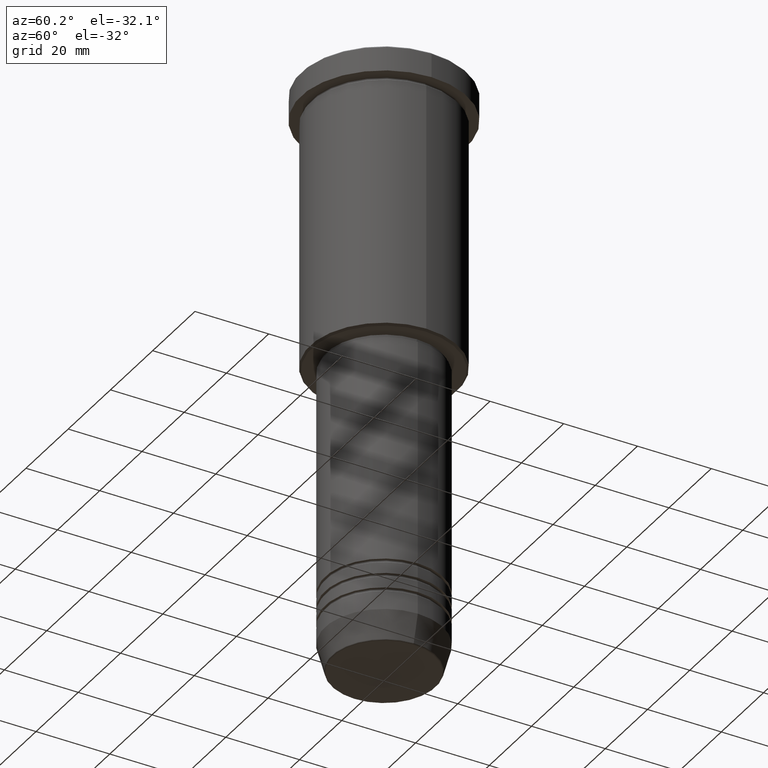
[diagram: clean part render]
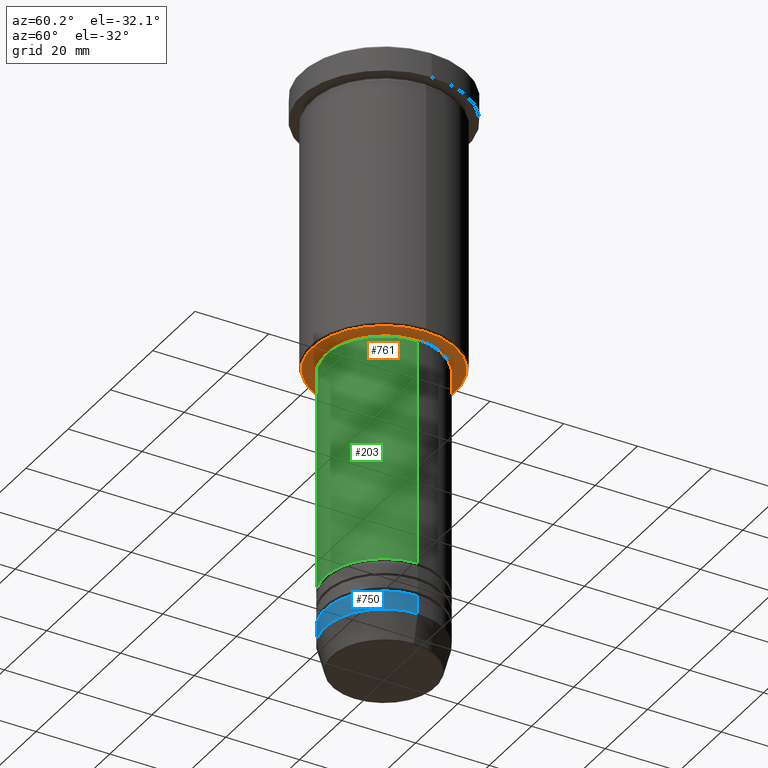
[diagram: same view with three faces highlighted in distinct colors, each labeled with its STEP entity id]
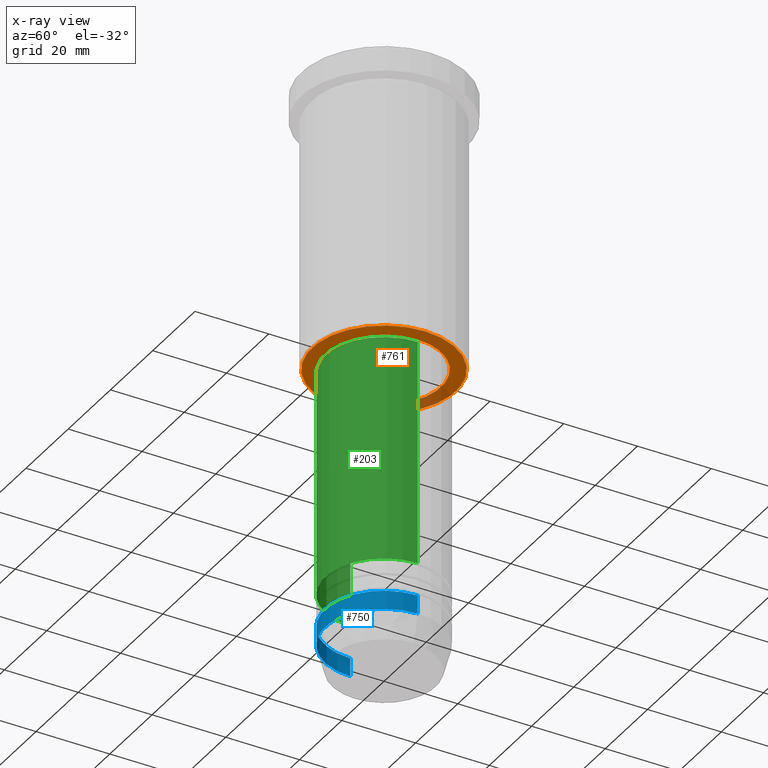
[diagram: x-ray of the same camera — body ghosted, the three highlighted faces saturated]
A machine part, auxiliary view with three faces highlighted in distinct colors.
The next image is the same camera in x-ray (body ghosted, the three faces saturated) — at least one of them is partly hidden behind the body in this view.
Their STEP definitions:

[orange] entity #761 — the highlighted planar face has unit normal (0, 0, -1).
#3 = DIRECTION ( 'NONE',  ( -1.000000000000000000, 0.000000000000000000, 0.000000000000000000 ) ) ;
#72 = CARTESIAN_POINT ( 'NONE',  ( 0.000000000000000000, 0.000000000000000000, -76.00000000000001421 ) ) ;
#80 = ORIENTED_EDGE ( 'NONE', *, *, #594, .T. ) ;
#101 = CARTESIAN_POINT ( 'NONE',  ( 0.000000000000000000, 0.000000000000000000, -76.00000000000001421 ) ) ;
#136 = EDGE_LOOP ( 'NONE', ( #887, #160 ) ) ;
#160 = ORIENTED_EDGE ( 'NONE', *, *, #498, .T. ) ;
#163 = CARTESIAN_POINT ( 'NONE',  ( 15.50000000000000000, 0.000000000000000000, -76.00000000000001421 ) ) ;
#189 = DIRECTION ( 'NONE',  ( 0.000000000000000000, 0.000000000000000000, -1.000000000000000000 ) ) ;
#204 = CARTESIAN_POINT ( 'NONE',  ( 0.000000000000000000, 20.00000000000000355, -76.00000000000001421 ) ) ;
#278 = DIRECTION ( 'NONE',  ( -0.000000000000000000, -0.000000000000000000, 1.000000000000000000 ) ) ;
#293 = PLANE ( 'NONE',  #692 ) ;
#315 = AXIS2_PLACEMENT_3D ( 'NONE', #72, #278, #907 ) ;
#338 = CIRCLE ( 'NONE', #574, 19.49999999999994671 ) ;
#348 = DIRECTION ( 'NONE',  ( 0.000000000000000000, 0.000000000000000000, -1.000000000000000000 ) ) ;
#352 = CARTESIAN_POINT ( 'NONE',  ( -19.49999999999994671, 2.418677428316019570E-15, -76.00000000000001421 ) ) ;
#416 = AXIS2_PLACEMENT_3D ( 'NONE', #101, #744, #467 ) ;
#428 = DIRECTION ( 'NONE',  ( -1.000000000000000000, 0.000000000000000000, -0.000000000000000000 ) ) ;
#451 = EDGE_LOOP ( 'NONE', ( #80, #977 ) ) ;
#459 = CARTESIAN_POINT ( 'NONE',  ( -15.50000000000000000, 1.898202538678397557E-15, -76.00000000000001421 ) ) ;
#467 = DIRECTION ( 'NONE',  ( 1.000000000000000000, 0.000000000000000000, 0.000000000000000000 ) ) ;
#469 = VERTEX_POINT ( 'NONE', #163 ) ;
#498 = EDGE_CURVE ( 'NONE', #800, #597, #859, .T. ) ;
#574 = AXIS2_PLACEMENT_3D ( 'NONE', #747, #189, #3 ) ;
#577 = DIRECTION ( 'NONE',  ( 0.000000000000000000, 0.000000000000000000, -1.000000000000000000 ) ) ;
#594 = EDGE_CURVE ( 'NONE', #469, #659, #1093, .T. ) ;
#597 = VERTEX_POINT ( 'NONE', #1002 ) ;
#659 = VERTEX_POINT ( 'NONE', #459 ) ;
#692 = AXIS2_PLACEMENT_3D ( 'NONE', #204, #577, #428 ) ;
#726 = DIRECTION ( 'NONE',  ( -1.000000000000000000, 0.000000000000000000, 0.000000000000000000 ) ) ;
#744 = DIRECTION ( 'NONE',  ( -0.000000000000000000, -0.000000000000000000, 1.000000000000000000 ) ) ;
#747 = CARTESIAN_POINT ( 'NONE',  ( 0.000000000000000000, 0.000000000000000000, -76.00000000000001421 ) ) ;
#756 = FACE_OUTER_BOUND ( 'NONE', #136, .T. ) ;
#761 = ADVANCED_FACE ( 'NONE', ( #756, #1109 ), #293, .T. ) ;
#800 = VERTEX_POINT ( 'NONE', #352 ) ;
#859 = CIRCLE ( 'NONE', #972, 19.49999999999994671 ) ;
#875 = EDGE_CURVE ( 'NONE', #659, #469, #1080, .T. ) ;
#887 = ORIENTED_EDGE ( 'NONE', *, *, #923, .T. ) ;
#907 = DIRECTION ( 'NONE',  ( 1.000000000000000000, 0.000000000000000000, 0.000000000000000000 ) ) ;
#923 = EDGE_CURVE ( 'NONE', #597, #800, #338, .T. ) ;
#963 = CARTESIAN_POINT ( 'NONE',  ( 0.000000000000000000, 0.000000000000000000, -76.00000000000001421 ) ) ;
#972 = AXIS2_PLACEMENT_3D ( 'NONE', #963, #348, #726 ) ;
#977 = ORIENTED_EDGE ( 'NONE', *, *, #875, .T. ) ;
#1002 = CARTESIAN_POINT ( 'NONE',  ( 19.49999999999994671, 0.000000000000000000, -76.00000000000001421 ) ) ;
#1080 = CIRCLE ( 'NONE', #315, 15.50000000000000000 ) ;
#1093 = CIRCLE ( 'NONE', #416, 15.50000000000000000 ) ;
#1109 = FACE_BOUND ( 'NONE', #451, .T. ) ;

[blue] entity #750 — the highlighted cylindrical surface (partial cylindrical patch) has radius 16 mm, axis along (-0, -0, 1).
#8 = VERTEX_POINT ( 'NONE', #710 ) ;
#9 = CIRCLE ( 'NONE', #1028, 16.00000000000000000 ) ;
#13 = CARTESIAN_POINT ( 'NONE',  ( -16.00000000000000000, 1.959434878635765131E-15, -152.5000000000000000 ) ) ;
#27 = ORIENTED_EDGE ( 'NONE', *, *, #1070, .F. ) ;
#64 = ORIENTED_EDGE ( 'NONE', *, *, #834, .F. ) ;
#91 = AXIS2_PLACEMENT_3D ( 'NONE', #318, #506, #870 ) ;
#106 = CYLINDRICAL_SURFACE ( 'NONE', #973, 16.00000000000000000 ) ;
#147 = LINE ( 'NONE', #1147, #519 ) ;
#202 = VERTEX_POINT ( 'NONE', #13 ) ;
#224 = FACE_OUTER_BOUND ( 'NONE', #967, .T. ) ;
#318 = CARTESIAN_POINT ( 'NONE',  ( 0.000000000000000000, 0.000000000000000000, -147.5000000000000000 ) ) ;
#323 = VECTOR ( 'NONE', #705, 1000.000000000000000 ) ;
#328 = DIRECTION ( 'NONE',  ( -0.000000000000000000, -0.000000000000000000, 1.000000000000000000 ) ) ;
#386 = DIRECTION ( 'NONE',  ( -0.000000000000000000, -0.000000000000000000, 1.000000000000000000 ) ) ;
#426 = VERTEX_POINT ( 'NONE', #1131 ) ;
#476 = CARTESIAN_POINT ( 'NONE',  ( 0.000000000000000000, 0.000000000000000000, 0.000000000000000000 ) ) ;
#506 = DIRECTION ( 'NONE',  ( -0.000000000000000000, -0.000000000000000000, 1.000000000000000000 ) ) ;
#519 = VECTOR ( 'NONE', #1067, 1000.000000000000000 ) ;
#524 = CARTESIAN_POINT ( 'NONE',  ( 16.00000000000000000, 0.000000000000000000, 0.000000000000000000 ) ) ;
#539 = EDGE_CURVE ( 'NONE', #202, #860, #9, .T. ) ;
#621 = ORIENTED_EDGE ( 'NONE', *, *, #799, .T. ) ;
#705 = DIRECTION ( 'NONE',  ( -0.000000000000000000, -0.000000000000000000, 1.000000000000000000 ) ) ;
#707 = CARTESIAN_POINT ( 'NONE',  ( 0.000000000000000000, 0.000000000000000000, -152.5000000000000000 ) ) ;
#710 = CARTESIAN_POINT ( 'NONE',  ( -16.00000000000000000, 1.959434878635765131E-15, -147.5000000000000000 ) ) ;
#750 = ADVANCED_FACE ( 'NONE', ( #224 ), #106, .T. ) ;
#799 = EDGE_CURVE ( 'NONE', #860, #426, #1152, .T. ) ;
#834 = EDGE_CURVE ( 'NONE', #202, #8, #147, .T. ) ;
#860 = VERTEX_POINT ( 'NONE', #998 ) ;
#870 = DIRECTION ( 'NONE',  ( 1.000000000000000000, 0.000000000000000000, 0.000000000000000000 ) ) ;
#880 = DIRECTION ( 'NONE',  ( 1.000000000000000000, 0.000000000000000000, 0.000000000000000000 ) ) ;
#882 = CIRCLE ( 'NONE', #91, 16.00000000000000000 ) ;
#946 = ORIENTED_EDGE ( 'NONE', *, *, #539, .T. ) ;
#967 = EDGE_LOOP ( 'NONE', ( #64, #946, #621, #27 ) ) ;
#973 = AXIS2_PLACEMENT_3D ( 'NONE', #476, #386, #1100 ) ;
#998 = CARTESIAN_POINT ( 'NONE',  ( 16.00000000000000000, 0.000000000000000000, -152.5000000000000000 ) ) ;
#1028 = AXIS2_PLACEMENT_3D ( 'NONE', #707, #328, #880 ) ;
#1067 = DIRECTION ( 'NONE',  ( -0.000000000000000000, -0.000000000000000000, 1.000000000000000000 ) ) ;
#1070 = EDGE_CURVE ( 'NONE', #8, #426, #882, .T. ) ;
#1100 = DIRECTION ( 'NONE',  ( 1.000000000000000000, 0.000000000000000000, 0.000000000000000000 ) ) ;
#1131 = CARTESIAN_POINT ( 'NONE',  ( 16.00000000000000000, 0.000000000000000000, -147.5000000000000000 ) ) ;
#1147 = CARTESIAN_POINT ( 'NONE',  ( -16.00000000000000000, 1.959434878635765131E-15, 0.000000000000000000 ) ) ;
#1152 = LINE ( 'NONE', #524, #323 ) ;

[green] entity #203 — the highlighted cylindrical surface (partial cylindrical patch) has radius 16 mm, axis along (-0, -0, 1).
#15 = VERTEX_POINT ( 'NONE', #427 ) ;
#105 = EDGE_CURVE ( 'NONE', #438, #253, #273, .T. ) ;
#127 = DIRECTION ( 'NONE',  ( 1.000000000000000000, 0.000000000000000000, 0.000000000000000000 ) ) ;
#186 = ORIENTED_EDGE ( 'NONE', *, *, #703, .T. ) ;
#203 = ADVANCED_FACE ( 'NONE', ( #385 ), #754, .T. ) ;
#207 = DIRECTION ( 'NONE',  ( -0.000000000000000000, -0.000000000000000000, 1.000000000000000000 ) ) ;
#217 = AXIS2_PLACEMENT_3D ( 'NONE', #680, #851, #693 ) ;
#220 = CIRCLE ( 'NONE', #766, 16.00000000000000000 ) ;
#245 = VECTOR ( 'NONE', #1012, 1000.000000000000000 ) ;
#253 = VERTEX_POINT ( 'NONE', #959 ) ;
#273 = LINE ( 'NONE', #826, #713 ) ;
#329 = CARTESIAN_POINT ( 'NONE',  ( 0.000000000000000000, 0.000000000000000000, -77.00000000000004263 ) ) ;
#333 = EDGE_CURVE ( 'NONE', #253, #728, #779, .T. ) ;
#353 = CARTESIAN_POINT ( 'NONE',  ( 16.00000000000000000, 0.000000000000000000, 0.000000000000000000 ) ) ;
#385 = FACE_OUTER_BOUND ( 'NONE', #513, .T. ) ;
#427 = CARTESIAN_POINT ( 'NONE',  ( 16.00000000000000000, 0.000000000000000000, -138.4999999999999716 ) ) ;
#438 = VERTEX_POINT ( 'NONE', #957 ) ;
#513 = EDGE_LOOP ( 'NONE', ( #558, #186, #751, #570 ) ) ;
#558 = ORIENTED_EDGE ( 'NONE', *, *, #105, .F. ) ;
#560 = EDGE_CURVE ( 'NONE', #15, #728, #1087, .T. ) ;
#570 = ORIENTED_EDGE ( 'NONE', *, *, #333, .F. ) ;
#675 = DIRECTION ( 'NONE',  ( -0.000000000000000000, -0.000000000000000000, 1.000000000000000000 ) ) ;
#680 = CARTESIAN_POINT ( 'NONE',  ( 0.000000000000000000, 0.000000000000000000, 0.000000000000000000 ) ) ;
#689 = CARTESIAN_POINT ( 'NONE',  ( 16.00000000000000000, 0.000000000000000000, -77.00000000000004263 ) ) ;
#693 = DIRECTION ( 'NONE',  ( 1.000000000000000000, 0.000000000000000000, 0.000000000000000000 ) ) ;
#703 = EDGE_CURVE ( 'NONE', #438, #15, #220, .T. ) ;
#713 = VECTOR ( 'NONE', #1183, 1000.000000000000000 ) ;
#728 = VERTEX_POINT ( 'NONE', #689 ) ;
#751 = ORIENTED_EDGE ( 'NONE', *, *, #560, .T. ) ;
#754 = CYLINDRICAL_SURFACE ( 'NONE', #217, 16.00000000000000000 ) ;
#766 = AXIS2_PLACEMENT_3D ( 'NONE', #767, #207, #127 ) ;
#767 = CARTESIAN_POINT ( 'NONE',  ( 0.000000000000000000, 0.000000000000000000, -138.4999999999999716 ) ) ;
#779 = CIRCLE ( 'NONE', #917, 16.00000000000000000 ) ;
#826 = CARTESIAN_POINT ( 'NONE',  ( -16.00000000000000000, 1.959434878635765131E-15, 0.000000000000000000 ) ) ;
#851 = DIRECTION ( 'NONE',  ( -0.000000000000000000, -0.000000000000000000, 1.000000000000000000 ) ) ;
#917 = AXIS2_PLACEMENT_3D ( 'NONE', #329, #675, #1033 ) ;
#957 = CARTESIAN_POINT ( 'NONE',  ( -16.00000000000000000, 1.959434878635765131E-15, -138.4999999999999716 ) ) ;
#959 = CARTESIAN_POINT ( 'NONE',  ( -16.00000000000000000, 1.959434878635765131E-15, -77.00000000000004263 ) ) ;
#1012 = DIRECTION ( 'NONE',  ( -0.000000000000000000, -0.000000000000000000, 1.000000000000000000 ) ) ;
#1033 = DIRECTION ( 'NONE',  ( 1.000000000000000000, 0.000000000000000000, 0.000000000000000000 ) ) ;
#1087 = LINE ( 'NONE', #353, #245 ) ;
#1183 = DIRECTION ( 'NONE',  ( -0.000000000000000000, -0.000000000000000000, 1.000000000000000000 ) ) ;